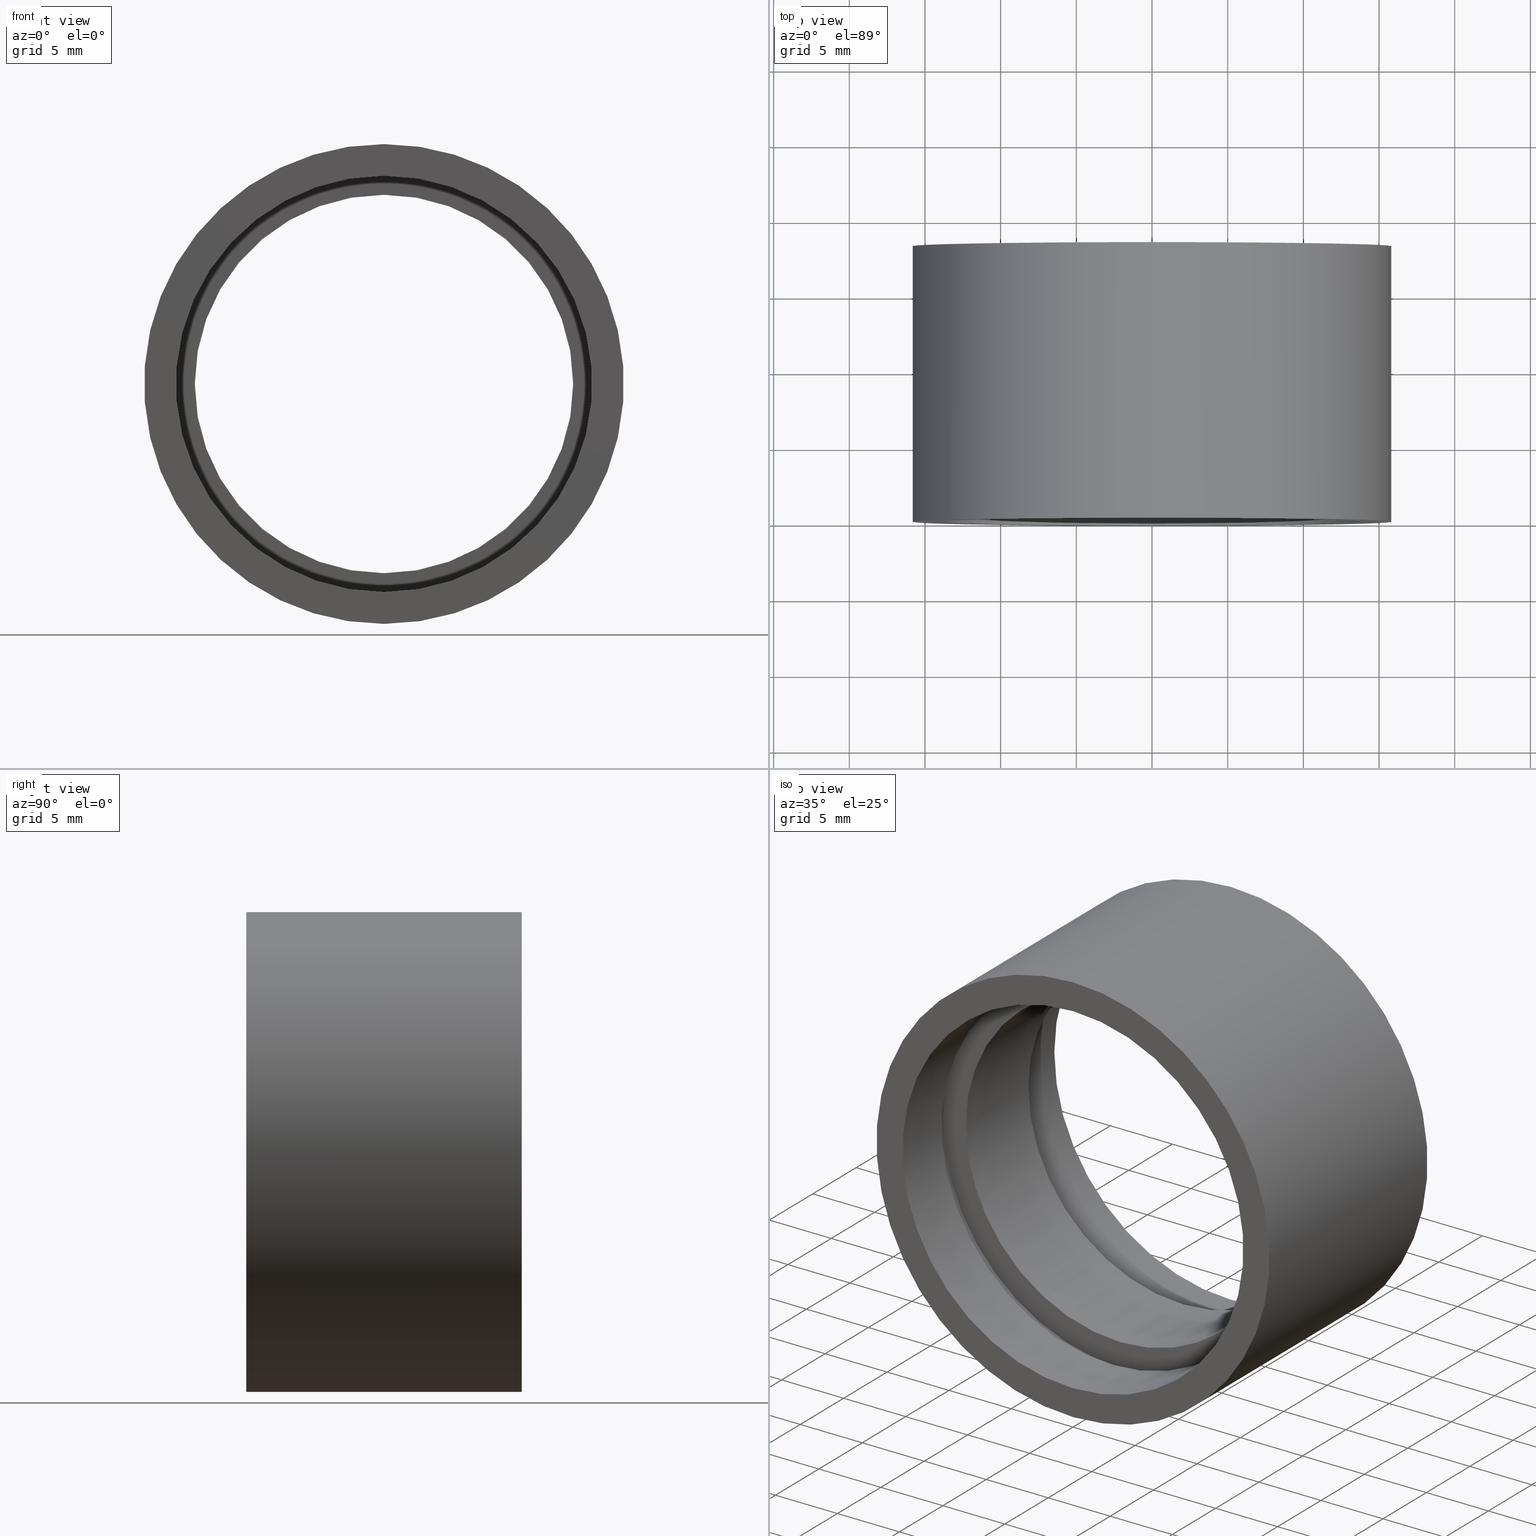
[diagram: canonical four-view strip — front | top / right | iso, engineering-drawing reading convention]
A machine part, canonical four-view strip (front | top / right | iso — engineering-drawing reading convention). The complete STEP part file that produces these views, byte-faithful:
ISO-10303-21;
HEADER;
FILE_DESCRIPTION (( 'STEP AP214' ),
    '1' );
FILE_NAME ('503054.STEP',
    '2019-09-06T07:47:11',
    ( '' ),
    ( '' ),
    'SwSTEP 2.0',
    'SolidWorks 2016',
    '' );
FILE_SCHEMA (( 'AUTOMOTIVE_DESIGN' ));
ENDSEC;

DATA;
#1 = EDGE_CURVE ( 'NONE', #546, #177, #510, .T. ) ;
#2 =( LENGTH_UNIT ( ) NAMED_UNIT ( * ) SI_UNIT ( .MILLI., .METRE. ) );
#3 = CIRCLE ( 'NONE', #153, 13.75000000000002100 ) ;
#4 = DIRECTION ( 'NONE',  ( -0.0000000000000000000, 1.000000000000000000, -0.0000000000000000000 ) ) ;
#5 = EDGE_LOOP ( 'NONE', ( #332, #242 ) ) ;
#6 = FILL_AREA_STYLE_COLOUR ( '', #356 ) ;
#7 = ADVANCED_FACE ( 'NONE', ( #432 ), #371, .F. ) ;
#8 = DIRECTION ( 'NONE',  ( -0.0000000000000000000, 1.000000000000000000, -0.0000000000000000000 ) ) ;
#9 = SURFACE_SIDE_STYLE ('',( #537 ) ) ;
#10 = AXIS2_PLACEMENT_3D ( 'NONE', #508, #162, #29 ) ;
#11 = DIRECTION ( 'NONE',  ( -0.0000000000000000000, 1.000000000000000000, -0.0000000000000000000 ) ) ;
#12 = CIRCLE ( 'NONE', #46, 14.35000000000001700 ) ;
#13 = CARTESIAN_POINT ( 'NONE',  ( 0.0000000000000000000, -2.775557561562891400E-014, 13.75000000000002100 ) ) ;
#14 = VERTEX_POINT ( 'NONE', #276 ) ;
#15 = EDGE_CURVE ( 'NONE', #108, #325, #399, .T. ) ;
#16 = VECTOR ( 'NONE', #78, 1000.000000000000000 ) ;
#17 = FACE_OUTER_BOUND ( 'NONE', #475, .T. ) ;
#18 = VERTEX_POINT ( 'NONE', #609 ) ;
#19 = AXIS2_PLACEMENT_3D ( 'NONE', #386, #202, #155 ) ;
#20 = CYLINDRICAL_SURFACE ( 'NONE', #507, 12.50000000000002000 ) ;
#21 = AXIS2_PLACEMENT_3D ( 'NONE', #51, #148, #552 ) ;
#22 = DIRECTION ( 'NONE',  ( 0.0000000000000000000, 0.0000000000000000000, 1.000000000000000000 ) ) ;
#23 = UNCERTAINTY_MEASURE_WITH_UNIT (LENGTH_MEASURE( 1.000000000000000100E-005 ), #381, 'distance_accuracy_value', 'NONE');
#24 = FILL_AREA_STYLE ('',( #501 ) ) ;
#25 = DIRECTION ( 'NONE',  ( -0.0000000000000000000, 1.000000000000000000, -0.0000000000000000000 ) ) ;
#26 = ORIENTED_EDGE ( 'NONE', *, *, #453, .T. ) ;
#27 = VERTEX_POINT ( 'NONE', #465 ) ;
#28 = PRESENTATION_STYLE_ASSIGNMENT (( #539 ) ) ;
#29 = DIRECTION ( 'NONE',  ( 0.0000000000000000000, 0.0000000000000000000, 1.000000000000000000 ) ) ;
#30 = AXIS2_PLACEMENT_3D ( 'NONE', #407, #594, #112 ) ;
#31 = DIRECTION ( 'NONE',  ( -0.0000000000000000000, 1.000000000000000000, -0.0000000000000000000 ) ) ;
#32 = EDGE_CURVE ( 'NONE', #325, #108, #267, .T. ) ;
#33 = SURFACE_STYLE_FILL_AREA ( #542 ) ;
#34 = VERTEX_POINT ( 'NONE', #272 ) ;
#35 = DIRECTION ( 'NONE',  ( 0.0000000000000000000, 0.0000000000000000000, 1.000000000000000000 ) ) ;
#36 = ORIENTED_EDGE ( 'NONE', *, *, #218, .F. ) ;
#37 = DIRECTION ( 'NONE',  ( -0.0000000000000000000, 1.000000000000000000, -0.0000000000000000000 ) ) ;
#38 = DIRECTION ( 'NONE',  ( -0.0000000000000000000, 1.000000000000000000, -0.0000000000000000000 ) ) ;
#39 = DIRECTION ( 'NONE',  ( -0.0000000000000000000, 1.000000000000000000, -0.0000000000000000000 ) ) ;
#40 = CARTESIAN_POINT ( 'NONE',  ( 1.757368156776454300E-015, 13.69999999999999000, -14.35000000000001900 ) ) ;
#41 = PRESENTATION_STYLE_ASSIGNMENT (( #306 ) ) ;
#42 = AXIS2_PLACEMENT_3D ( 'NONE', #443, #200, #547 ) ;
#43 = FACE_OUTER_BOUND ( 'NONE', #216, .T. ) ;
#44 = EDGE_LOOP ( 'NONE', ( #364, #150, #211, #459 ) ) ;
#45 =( GEOMETRIC_REPRESENTATION_CONTEXT ( 3 ) GLOBAL_UNCERTAINTY_ASSIGNED_CONTEXT ( ( #601 ) ) GLOBAL_UNIT_ASSIGNED_CONTEXT ( ( #152, #498, #61 ) ) REPRESENTATION_CONTEXT ( 'NONE', 'WORKASPACE' ) );
#46 = AXIS2_PLACEMENT_3D ( 'NONE', #387, #580, #530 ) ;
#47 = SURFACE_SIDE_STYLE ('',( #302 ) ) ;
#48 = FILL_AREA_STYLE_COLOUR ( '', #297 ) ;
#49 = ORIENTED_EDGE ( 'NONE', *, *, #156, .T. ) ;
#50 = CYLINDRICAL_SURFACE ( 'NONE', #571, 15.85000000000002100 ) ;
#51 = CARTESIAN_POINT ( 'NONE',  ( 14.25000000000001800, 13.69999999999998300, 0.0000000000000000000 ) ) ;
#52 = MECHANICAL_DESIGN_GEOMETRIC_PRESENTATION_REPRESENTATION (  '', ( #495 ), #526 ) ;
#53 = CARTESIAN_POINT ( 'NONE',  ( 1.683889348827613200E-015, 4.499999999999976000, -13.75000000000002100 ) ) ;
#54 = SURFACE_SIDE_STYLE ('',( #88 ) ) ;
#55 = VECTOR ( 'NONE', #201, 1000.000000000000000 ) ;
#56 = ORIENTED_EDGE ( 'NONE', *, *, #321, .T. ) ;
#57 = EDGE_CURVE ( 'NONE', #313, #406, #12, .T. ) ;
#58 = ORIENTED_EDGE ( 'NONE', *, *, #603, .F. ) ;
#59 =( NAMED_UNIT ( * ) PLANE_ANGLE_UNIT ( ) SI_UNIT ( $, .RADIAN. ) );
#60 = CARTESIAN_POINT ( 'NONE',  ( 1.941065176648557100E-015, 18.19999999999999600, -15.85000000000002100 ) ) ;
#61 =( NAMED_UNIT ( * ) SI_UNIT ( $, .STERADIAN. ) SOLID_ANGLE_UNIT ( ) );
#62 = FACE_OUTER_BOUND ( 'NONE', #71, .T. ) ;
#63 =( NAMED_UNIT ( * ) SI_UNIT ( $, .STERADIAN. ) SOLID_ANGLE_UNIT ( ) );
#64 = ORIENTED_EDGE ( 'NONE', *, *, #595, .F. ) ;
#65 = VERTEX_POINT ( 'NONE', #476 ) ;
#66 = EDGE_CURVE ( 'NONE', #621, #177, #544, .T. ) ;
#67 = DIRECTION ( 'NONE',  ( -0.0000000000000000000, 1.000000000000000000, 0.0000000000000000000 ) ) ;
#68 = UNCERTAINTY_MEASURE_WITH_UNIT (LENGTH_MEASURE( 1.000000000000000100E-005 ), #236, 'distance_accuracy_value', 'NONE');
#69 =( LENGTH_UNIT ( ) NAMED_UNIT ( * ) SI_UNIT ( .MILLI., .METRE. ) );
#70 = CIRCLE ( 'NONE', #563, 14.25000000000001800 ) ;
#71 = EDGE_LOOP ( 'NONE', ( #333, #36, #56, #391 ) ) ;
#72 = CIRCLE ( 'NONE', #482, 14.35000000000001900 ) ;
#73 = AXIS2_PLACEMENT_3D ( 'NONE', #130, #291, #282 ) ;
#74 = ORIENTED_EDGE ( 'NONE', *, *, #300, .F. ) ;
#75 = VERTEX_POINT ( 'NONE', #223 ) ;
#76 = CARTESIAN_POINT ( 'NONE',  ( 13.75000000000002100, 4.499999999999984000, 0.0000000000000000000 ) ) ;
#77 = CARTESIAN_POINT ( 'NONE',  ( 0.0000000000000000000, 161.3761669434274500, 0.0000000000000000000 ) ) ;
#78 = DIRECTION ( 'NONE',  ( -0.0000000000000000000, 1.000000000000000000, -0.0000000000000000000 ) ) ;
#79 = AXIS2_PLACEMENT_3D ( 'NONE', #462, #25, #456 ) ;
#80 = FACE_OUTER_BOUND ( 'NONE', #576, .T. ) ;
#81 = SURFACE_STYLE_FILL_AREA ( #606 ) ;
#82 = CARTESIAN_POINT ( 'NONE',  ( 0.0000000000000000000, 161.3761669434274500, 15.85000000000002100 ) ) ;
#83 = ORIENTED_EDGE ( 'NONE', *, *, #390, .T. ) ;
#84 = PRESENTATION_LAYER_ASSIGNMENT (  '', '', ( #564 ) ) ;
#85 = FILL_AREA_STYLE ('',( #464 ) ) ;
#86 = DIRECTION ( 'NONE',  ( 0.0000000000000000000, 0.0000000000000000000, 1.000000000000000000 ) ) ;
#87 = CARTESIAN_POINT ( 'NONE',  ( 0.0000000000000000000, 4.499999999999976000, 13.75000000000002100 ) ) ;
#88 = SURFACE_STYLE_FILL_AREA ( #195 ) ;
#89 = ADVANCED_FACE ( 'NONE', ( #558, #452 ), #288, .F. ) ;
#90 = VERTEX_POINT ( 'NONE', #234 ) ;
#91 = FILL_AREA_STYLE ('',( #192 ) ) ;
#92 = CYLINDRICAL_SURFACE ( 'NONE', #550, 15.85000000000002100 ) ;
#93 = DIRECTION ( 'NONE',  ( 0.0000000000000000000, 0.0000000000000000000, 1.000000000000000000 ) ) ;
#94 = EDGE_CURVE ( 'NONE', #27, #423, #503, .T. ) ;
#95 = CARTESIAN_POINT ( 'NONE',  ( 0.0000000000000000000, 5.499999999999976900, 0.0000000000000000000 ) ) ;
#96 = DIRECTION ( 'NONE',  ( -0.0000000000000000000, 1.000000000000000000, -0.0000000000000000000 ) ) ;
#97 = SURFACE_SIDE_STYLE ('',( #33 ) ) ;
#98 = ADVANCED_FACE ( 'NONE', ( #17 ), #213, .F. ) ;
#99 = LINE ( 'NONE', #354, #557 ) ;
#100 = EDGE_LOOP ( 'NONE', ( #357, #160, #260, #496 ) ) ;
#101 = CIRCLE ( 'NONE', #209, 14.35000000000001900 ) ;
#102 = VECTOR ( 'NONE', #178, 1000.000000000000000 ) ;
#103 =( LENGTH_UNIT ( ) NAMED_UNIT ( * ) SI_UNIT ( .MILLI., .METRE. ) );
#104 = AXIS2_PLACEMENT_3D ( 'NONE', #256, #67, #451 ) ;
#105 =( NAMED_UNIT ( * ) SI_UNIT ( $, .STERADIAN. ) SOLID_ANGLE_UNIT ( ) );
#106 = DIRECTION ( 'NONE',  ( 0.0000000000000000000, 0.0000000000000000000, 1.000000000000000000 ) ) ;
#107 = VERTEX_POINT ( 'NONE', #240 ) ;
#108 = VERTEX_POINT ( 'NONE', #619 ) ;
#109 = CIRCLE ( 'NONE', #278, 14.35000000000001900 ) ;
#110 = SURFACE_SIDE_STYLE ('',( #422 ) ) ;
#111 = CIRCLE ( 'NONE', #471, 12.50000000000002000 ) ;
#112 = DIRECTION ( 'NONE',  ( 0.0000000000000000000, 0.0000000000000000000, 1.000000000000000000 ) ) ;
#113 = ORIENTED_EDGE ( 'NONE', *, *, #149, .T. ) ;
#114 = STYLED_ITEM ( 'NONE', ( #353 ), #434 ) ;
#115 = CARTESIAN_POINT ( 'NONE',  ( 1.757368156776454000E-015, 12.69999999999998900, -14.35000000000001700 ) ) ;
#116 = CARTESIAN_POINT ( 'NONE',  ( 0.0000000000000000000, -2.775557561562891400E-014, 0.0000000000000000000 ) ) ;
#117 =( GEOMETRIC_REPRESENTATION_CONTEXT ( 3 ) GLOBAL_UNCERTAINTY_ASSIGNED_CONTEXT ( ( #561 ) ) GLOBAL_UNIT_ASSIGNED_CONTEXT ( ( #167, #515, #470 ) ) REPRESENTATION_CONTEXT ( 'NONE', 'WORKASPACE' ) );
#118 = EDGE_LOOP ( 'NONE', ( #143, #119 ) ) ;
#119 = ORIENTED_EDGE ( 'NONE', *, *, #511, .F. ) ;
#120 = PRESENTATION_LAYER_ASSIGNMENT (  '', '', ( #458 ) ) ;
#121 = LINE ( 'NONE', #82, #382 ) ;
#122 = AXIS2_PLACEMENT_3D ( 'NONE', #427, #180, #185 ) ;
#123 = CARTESIAN_POINT ( 'NONE',  ( 0.0000000000000000000, 18.19999999999999600, 0.0000000000000000000 ) ) ;
#124 = COLOUR_RGB ( '',1.000000000000000000, 1.000000000000000000, 1.000000000000000000 ) ;
#125 = DIRECTION ( 'NONE',  ( -0.0000000000000000000, 1.000000000000000000, -0.0000000000000000000 ) ) ;
#126 = CIRCLE ( 'NONE', #244, 14.35000000000001900 ) ;
#127 = CARTESIAN_POINT ( 'NONE',  ( 1.757368156776454300E-015, 4.499999999999976000, -14.35000000000001900 ) ) ;
#128 = SURFACE_STYLE_USAGE ( .BOTH. , #611 ) ;
#129 = DIRECTION ( 'NONE',  ( 0.0000000000000000000, 0.0000000000000000000, 1.000000000000000000 ) ) ;
#130 = CARTESIAN_POINT ( 'NONE',  ( 0.0000000000000000000, 4.499999999999976000, 0.0000000000000000000 ) ) ;
#131 = AXIS2_PLACEMENT_3D ( 'NONE', #567, #279, #280 ) ;
#132 = ORIENTED_EDGE ( 'NONE', *, *, #191, .T. ) ;
#133 = DIRECTION ( 'NONE',  ( 0.0000000000000000000, -1.000000000000000000, 0.0000000000000000000 ) ) ;
#134 = ORIENTED_EDGE ( 'NONE', *, *, #32, .T. ) ;
#135 = STYLED_ITEM ( 'NONE', ( #221 ), #144 ) ;
#136 = PRODUCT_DEFINITION_CONTEXT ( 'detailed design', #548, 'design' ) ;
#137 = CARTESIAN_POINT ( 'NONE',  ( 1.530808498934193900E-015, 12.69999999999998900, -12.50000000000002000 ) ) ;
#138 =( NAMED_UNIT ( * ) PLANE_ANGLE_UNIT ( ) SI_UNIT ( $, .RADIAN. ) );
#139 = APPLICATION_CONTEXT ( 'automotive_design' ) ;
#140 = DIRECTION ( 'NONE',  ( 0.0000000000000000000, 0.0000000000000000000, 1.000000000000000000 ) ) ;
#141 = LINE ( 'NONE', #581, #55 ) ;
#142 = DIRECTION ( 'NONE',  ( -0.0000000000000000000, 1.000000000000000000, -0.0000000000000000000 ) ) ;
#143 = ORIENTED_EDGE ( 'NONE', *, *, #94, .F. ) ;
#144 = ADVANCED_FACE ( 'NONE', ( #251 ), #466, .F. ) ;
#145 = CARTESIAN_POINT ( 'NONE',  ( 0.0000000000000000000, -2.775557561562891400E-014, 0.0000000000000000000 ) ) ;
#146 = DIRECTION ( 'NONE',  ( -0.0000000000000000000, 1.000000000000000000, -0.0000000000000000000 ) ) ;
#147 = PRESENTATION_LAYER_ASSIGNMENT (  '', '', ( #114 ) ) ;
#148 = DIRECTION ( 'NONE',  ( -0.0000000000000000000, 1.000000000000000000, 0.0000000000000000000 ) ) ;
#149 = EDGE_CURVE ( 'NONE', #417, #325, #409, .T. ) ;
#150 = ORIENTED_EDGE ( 'NONE', *, *, #232, .T. ) ;
#151 = ORIENTED_EDGE ( 'NONE', *, *, #57, .T. ) ;
#152 =( LENGTH_UNIT ( ) NAMED_UNIT ( * ) SI_UNIT ( .MILLI., .METRE. ) );
#153 = AXIS2_PLACEMENT_3D ( 'NONE', #116, #31, #362 ) ;
#154 = SURFACE_STYLE_USAGE ( .BOTH. , #110 ) ;
#155 = DIRECTION ( 'NONE',  ( 1.000000000000000000, 0.0000000000000000000, 0.0000000000000000000 ) ) ;
#156 = EDGE_CURVE ( 'NONE', #454, #107, #346, .T. ) ;
#157 =( NAMED_UNIT ( * ) PLANE_ANGLE_UNIT ( ) SI_UNIT ( $, .RADIAN. ) );
#158 = LINE ( 'NONE', #230, #622 ) ;
#159 =( LENGTH_UNIT ( ) NAMED_UNIT ( * ) SI_UNIT ( .MILLI., .METRE. ) );
#160 = ORIENTED_EDGE ( 'NONE', *, *, #595, .T. ) ;
#161 = LINE ( 'NONE', #238, #380 ) ;
#162 = DIRECTION ( 'NONE',  ( -0.0000000000000000000, 1.000000000000000000, -0.0000000000000000000 ) ) ;
#163 = FACE_OUTER_BOUND ( 'NONE', #318, .T. ) ;
#164 = PRESENTATION_LAYER_ASSIGNMENT (  '', '', ( #135 ) ) ;
#165 = CARTESIAN_POINT ( 'NONE',  ( 0.0000000000000000000, 161.3761669434274500, 0.0000000000000000000 ) ) ;
#166 = PRODUCT ( '503054', '503054', '', ( #247 ) ) ;
#167 =( LENGTH_UNIT ( ) NAMED_UNIT ( * ) SI_UNIT ( .MILLI., .METRE. ) );
#168 = ORIENTED_EDGE ( 'NONE', *, *, #355, .T. ) ;
#169 = SURFACE_SIDE_STYLE ('',( #377 ) ) ;
#170 = VERTEX_POINT ( 'NONE', #60 ) ;
#171 = SHAPE_DEFINITION_REPRESENTATION ( #310, #493 ) ;
#172 = DIRECTION ( 'NONE',  ( -0.0000000000000000000, 1.000000000000000000, -0.0000000000000000000 ) ) ;
#173 = UNCERTAINTY_MEASURE_WITH_UNIT (LENGTH_MEASURE( 1.000000000000000100E-005 ), #222, 'distance_accuracy_value', 'NONE');
#174 = CARTESIAN_POINT ( 'NONE',  ( 1.530808498934193900E-015, 161.3761669434274500, -12.50000000000002000 ) ) ;
#175 =( GEOMETRIC_REPRESENTATION_CONTEXT ( 3 ) GLOBAL_UNCERTAINTY_ASSIGNED_CONTEXT ( ( #173 ) ) GLOBAL_UNIT_ASSIGNED_CONTEXT ( ( #222, #568, #182 ) ) REPRESENTATION_CONTEXT ( 'NONE', 'WORKASPACE' ) );
#176 = DIRECTION ( 'NONE',  ( 0.0000000000000000000, 0.0000000000000000000, 1.000000000000000000 ) ) ;
#177 = VERTEX_POINT ( 'NONE', #53 ) ;
#178 = DIRECTION ( 'NONE',  ( -0.0000000000000000000, 1.000000000000000000, -0.0000000000000000000 ) ) ;
#179 = EDGE_CURVE ( 'NONE', #513, #65, #70, .T. ) ;
#180 = DIRECTION ( 'NONE',  ( -0.0000000000000000000, 1.000000000000000000, -0.0000000000000000000 ) ) ;
#181 = SURFACE_STYLE_FILL_AREA ( #85 ) ;
#182 =( NAMED_UNIT ( * ) SI_UNIT ( $, .STERADIAN. ) SOLID_ANGLE_UNIT ( ) );
#183 = CARTESIAN_POINT ( 'NONE',  ( 15.85000000000002100, 18.19999999999998900, 0.0000000000000000000 ) ) ;
#184 = CARTESIAN_POINT ( 'NONE',  ( 0.0000000000000000000, 161.3761669434274500, 0.0000000000000000000 ) ) ;
#185 = DIRECTION ( 'NONE',  ( 0.0000000000000000000, 0.0000000000000000000, 1.000000000000000000 ) ) ;
#186 = AXIS2_PLACEMENT_3D ( 'NONE', #76, #323, #263 ) ;
#187 = ADVANCED_FACE ( 'NONE', ( #43 ), #543, .F. ) ;
#188 = VERTEX_POINT ( 'NONE', #589 ) ;
#189 = ORIENTED_EDGE ( 'NONE', *, *, #32, .F. ) ;
#190 = CIRCLE ( 'NONE', #10, 15.85000000000002100 ) ;
#191 = EDGE_CURVE ( 'NONE', #14, #108, #141, .T. ) ;
#192 = FILL_AREA_STYLE_COLOUR ( '', #124 ) ;
#193 = ADVANCED_FACE ( 'NONE', ( #62 ), #258, .F. ) ;
#194 = DIRECTION ( 'NONE',  ( 0.0000000000000000000, 0.0000000000000000000, 1.000000000000000000 ) ) ;
#195 = FILL_AREA_STYLE ('',( #445 ) ) ;
#196 = PRESENTATION_STYLE_ASSIGNMENT (( #246 ) ) ;
#197 = APPLICATION_PROTOCOL_DEFINITION ( 'draft international standard', 'automotive_design', 1998, #548 ) ;
#198 = ORIENTED_EDGE ( 'NONE', *, *, #390, .F. ) ;
#199 = AXIS2_PLACEMENT_3D ( 'NONE', #184, #524, #343 ) ;
#200 = DIRECTION ( 'NONE',  ( -0.0000000000000000000, 1.000000000000000000, -0.0000000000000000000 ) ) ;
#201 = DIRECTION ( 'NONE',  ( -0.0000000000000000000, 1.000000000000000000, -0.0000000000000000000 ) ) ;
#202 = DIRECTION ( 'NONE',  ( 0.0000000000000000000, 0.0000000000000000000, 1.000000000000000000 ) ) ;
#203 = ORIENTED_EDGE ( 'NONE', *, *, #15, .F. ) ;
#204 = VERTEX_POINT ( 'NONE', #13 ) ;
#205 = PLANE ( 'NONE',  #450 ) ;
#206 = DIRECTION ( 'NONE',  ( -0.0000000000000000000, 1.000000000000000000, -0.0000000000000000000 ) ) ;
#207 = CARTESIAN_POINT ( 'NONE',  ( 0.0000000000000000000, 4.499999999999976000, 0.0000000000000000000 ) ) ;
#208 = VECTOR ( 'NONE', #538, 1000.000000000000000 ) ;
#209 = AXIS2_PLACEMENT_3D ( 'NONE', #520, #327, #219 ) ;
#210 = ORIENTED_EDGE ( 'NONE', *, *, #218, .T. ) ;
#211 = ORIENTED_EDGE ( 'NONE', *, *, #444, .T. ) ;
#212 = EDGE_CURVE ( 'NONE', #406, #313, #336, .T. ) ;
#213 = CYLINDRICAL_SURFACE ( 'NONE', #500, 14.35000000000001900 ) ;
#214 = ORIENTED_EDGE ( 'NONE', *, *, #212, .T. ) ;
#215 = STYLED_ITEM ( 'NONE', ( #509 ), #342 ) ;
#216 = EDGE_LOOP ( 'NONE', ( #593, #512, #410, #412 ) ) ;
#217 = DIRECTION ( 'NONE',  ( -0.0000000000000000000, 1.000000000000000000, -0.0000000000000000000 ) ) ;
#218 = EDGE_CURVE ( 'NONE', #204, #546, #331, .T. ) ;
#219 = DIRECTION ( 'NONE',  ( 0.0000000000000000000, 0.0000000000000000000, 1.000000000000000000 ) ) ;
#220 = CIRCLE ( 'NONE', #30, 12.50000000000002000 ) ;
#221 = PRESENTATION_STYLE_ASSIGNMENT (( #534 ) ) ;
#222 =( LENGTH_UNIT ( ) NAMED_UNIT ( * ) SI_UNIT ( .MILLI., .METRE. ) );
#223 = CARTESIAN_POINT ( 'NONE',  ( 0.0000000000000000000, 12.69999999999998900, 12.50000000000002000 ) ) ;
#224 = DIRECTION ( 'NONE',  ( -0.0000000000000000000, 1.000000000000000000, -0.0000000000000000000 ) ) ;
#225 = AXIS2_PLACEMENT_3D ( 'NONE', #393, #96, #435 ) ;
#226 = CARTESIAN_POINT ( 'NONE',  ( 1.745121688784980600E-015, 13.69999999999999000, -14.25000000000001800 ) ) ;
#227 = DIRECTION ( 'NONE',  ( 0.0000000000000000000, -0.0000000000000000000, -1.000000000000000000 ) ) ;
#228 = ORIENTED_EDGE ( 'NONE', *, *, #300, .T. ) ;
#229 = ORIENTED_EDGE ( 'NONE', *, *, #212, .F. ) ;
#230 = CARTESIAN_POINT ( 'NONE',  ( 1.745121688784980600E-015, 161.3761669434274500, -14.25000000000001800 ) ) ;
#231 = ORIENTED_EDGE ( 'NONE', *, *, #404, .T. ) ;
#232 = EDGE_CURVE ( 'NONE', #313, #477, #241, .T. ) ;
#233 = FACE_OUTER_BOUND ( 'NONE', #565, .T. ) ;
#234 = CARTESIAN_POINT ( 'NONE',  ( 0.0000000000000000000, 18.19999999999999600, 14.25000000000001800 ) ) ;
#235 = CIRCLE ( 'NONE', #79, 14.25000000000001800 ) ;
#236 =( LENGTH_UNIT ( ) NAMED_UNIT ( * ) SI_UNIT ( .MILLI., .METRE. ) );
#237 = DIRECTION ( 'NONE',  ( -0.0000000000000000000, 1.000000000000000000, -0.0000000000000000000 ) ) ;
#238 = CARTESIAN_POINT ( 'NONE',  ( 0.0000000000000000000, 161.3761669434274500, 14.25000000000001800 ) ) ;
#239 = ADVANCED_FACE ( 'NONE', ( #311, #416 ), #584, .F. ) ;
#240 = CARTESIAN_POINT ( 'NONE',  ( 0.0000000000000000000, 5.499999999999976900, 12.50000000000002000 ) ) ;
#241 = LINE ( 'NONE', #341, #208 ) ;
#242 = ORIENTED_EDGE ( 'NONE', *, *, #419, .T. ) ;
#243 = MANIFOLD_SOLID_BREP ( '��ת1', #613 ) ;
#244 = AXIS2_PLACEMENT_3D ( 'NONE', #623, #146, #93 ) ;
#245 = CYLINDRICAL_SURFACE ( 'NONE', #485, 13.75000000000002100 ) ;
#246 = SURFACE_STYLE_USAGE ( .BOTH. , #54 ) ;
#247 = PRODUCT_CONTEXT ( 'NONE', #139, 'mechanical' ) ;
#248 = CARTESIAN_POINT ( 'NONE',  ( 1.757368156776454300E-015, 161.3761669434274500, -14.35000000000001900 ) ) ;
#249 = AXIS2_PLACEMENT_3D ( 'NONE', #95, #237, #86 ) ;
#250 = FILL_AREA_STYLE_COLOUR ( '', #521 ) ;
#251 = FACE_OUTER_BOUND ( 'NONE', #283, .T. ) ;
#252 = EDGE_LOOP ( 'NONE', ( #64, #351, #231, #281 ) ) ;
#253 = ORIENTED_EDGE ( 'NONE', *, *, #397, .T. ) ;
#254 = CIRCLE ( 'NONE', #266, 12.50000000000002000 ) ;
#255 = PRESENTATION_LAYER_ASSIGNMENT (  '', '', ( #415 ) ) ;
#256 = CARTESIAN_POINT ( 'NONE',  ( 13.75000000000002100, -1.554524340841388500E-014, 0.0000000000000000000 ) ) ;
#257 = CARTESIAN_POINT ( 'NONE',  ( 12.50000000000002000, 12.69999999999998200, 0.0000000000000000000 ) ) ;
#258 = CYLINDRICAL_SURFACE ( 'NONE', #289, 13.75000000000002100 ) ;
#259 = PRESENTATION_STYLE_ASSIGNMENT (( #128 ) ) ;
#260 = ORIENTED_EDGE ( 'NONE', *, *, #349, .F. ) ;
#261 = CARTESIAN_POINT ( 'NONE',  ( 0.0000000000000000000, 12.69999999999998900, 0.0000000000000000000 ) ) ;
#262 = AXIS2_PLACEMENT_3D ( 'NONE', #183, #133, #227 ) ;
#263 = DIRECTION ( 'NONE',  ( 0.0000000000000000000, -0.0000000000000000000, -1.000000000000000000 ) ) ;
#264 = DIRECTION ( 'NONE',  ( 0.0000000000000000000, 0.0000000000000000000, 1.000000000000000000 ) ) ;
#265 = COLOUR_RGB ( '',1.000000000000000000, 1.000000000000000000, 1.000000000000000000 ) ;
#266 = AXIS2_PLACEMENT_3D ( 'NONE', #285, #617, #577 ) ;
#267 = CIRCLE ( 'NONE', #249, 14.35000000000001900 ) ;
#268 = EDGE_LOOP ( 'NONE', ( #566, #350 ) ) ;
#269 = CYLINDRICAL_SURFACE ( 'NONE', #225, 14.35000000000001900 ) ;
#270 = PRODUCT_DEFINITION ( 'δ֪', '', #308, #136 ) ;
#271 = EDGE_CURVE ( 'NONE', #177, #621, #551, .T. ) ;
#272 = CARTESIAN_POINT ( 'NONE',  ( 0.0000000000000000000, 13.69999999999999000, 14.35000000000001900 ) ) ;
#273 = DIRECTION ( 'NONE',  ( -0.0000000000000000000, 1.000000000000000000, -0.0000000000000000000 ) ) ;
#274 = VECTOR ( 'NONE', #614, 1000.000000000000000 ) ;
#275 = EDGE_LOOP ( 'NONE', ( #533, #74, #83, #425 ) ) ;
#276 = CARTESIAN_POINT ( 'NONE',  ( 0.0000000000000000000, 4.499999999999976000, 14.35000000000001900 ) ) ;
#277 = SURFACE_SIDE_STYLE ('',( #181 ) ) ;
#278 = AXIS2_PLACEMENT_3D ( 'NONE', #322, #217, #560 ) ;
#279 = DIRECTION ( 'NONE',  ( -0.0000000000000000000, 1.000000000000000000, -0.0000000000000000000 ) ) ;
#280 = DIRECTION ( 'NONE',  ( 0.0000000000000000000, 0.0000000000000000000, 1.000000000000000000 ) ) ;
#281 = ORIENTED_EDGE ( 'NONE', *, *, #419, .F. ) ;
#282 = DIRECTION ( 'NONE',  ( 0.0000000000000000000, 0.0000000000000000000, 1.000000000000000000 ) ) ;
#283 = EDGE_LOOP ( 'NONE', ( #58, #303, #373, #504 ) ) ;
#284 = CYLINDRICAL_SURFACE ( 'NONE', #199, 14.35000000000001900 ) ;
#285 = CARTESIAN_POINT ( 'NONE',  ( 0.0000000000000000000, 12.69999999999998900, 0.0000000000000000000 ) ) ;
#286 = CARTESIAN_POINT ( 'NONE',  ( 0.0000000000000000000, 161.3761669434274500, 0.0000000000000000000 ) ) ;
#287 = ADVANCED_FACE ( 'NONE', ( #370, #292 ), #405, .F. ) ;
#288 = PLANE ( 'NONE',  #262 ) ;
#289 = AXIS2_PLACEMENT_3D ( 'NONE', #344, #398, #395 ) ;
#290 =( NAMED_UNIT ( * ) SI_UNIT ( $, .STERADIAN. ) SOLID_ANGLE_UNIT ( ) );
#291 = DIRECTION ( 'NONE',  ( -0.0000000000000000000, 1.000000000000000000, -0.0000000000000000000 ) ) ;
#292 = FACE_BOUND ( 'NONE', #294, .T. ) ;
#293 = ADVANCED_FACE ( 'NONE', ( #612, #487 ), #205, .F. ) ;
#294 = EDGE_LOOP ( 'NONE', ( #210, #392 ) ) ;
#295 = DIRECTION ( 'NONE',  ( -0.0000000000000000000, 1.000000000000000000, -0.0000000000000000000 ) ) ;
#296 = EDGE_LOOP ( 'NONE', ( #214, #151 ) ) ;
#297 = COLOUR_RGB ( '',1.000000000000000000, 1.000000000000000000, 1.000000000000000000 ) ;
#298 = UNCERTAINTY_MEASURE_WITH_UNIT (LENGTH_MEASURE( 1.000000000000000100E-005 ), #103, 'distance_accuracy_value', 'NONE');
#299 = DIRECTION ( 'NONE',  ( -0.0000000000000000000, 1.000000000000000000, -0.0000000000000000000 ) ) ;
#300 = EDGE_CURVE ( 'NONE', #107, #454, #220, .T. ) ;
#301 =( NAMED_UNIT ( * ) SI_UNIT ( $, .STERADIAN. ) SOLID_ANGLE_UNIT ( ) );
#302 = SURFACE_STYLE_FILL_AREA ( #91 ) ;
#303 = ORIENTED_EDGE ( 'NONE', *, *, #355, .F. ) ;
#304 = AXIS2_PLACEMENT_3D ( 'NONE', #484, #383, #481 ) ;
#305 = FACE_OUTER_BOUND ( 'NONE', #252, .T. ) ;
#306 = SURFACE_STYLE_USAGE ( .BOTH. , #97 ) ;
#307 = CARTESIAN_POINT ( 'NONE',  ( 0.0000000000000000000, 161.3761669434274500, 14.35000000000001900 ) ) ;
#308 = PRODUCT_DEFINITION_FORMATION_WITH_SPECIFIED_SOURCE ( '�κ�', '', #166, .NOT_KNOWN. ) ;
#309 = EDGE_CURVE ( 'NONE', #523, #75, #111, .T. ) ;
#310 = PRODUCT_DEFINITION_SHAPE ( 'NONE', 'NONE',  #270 ) ;
#311 = FACE_OUTER_BOUND ( 'NONE', #431, .T. ) ;
#312 = ORIENTED_EDGE ( 'NONE', *, *, #15, .T. ) ;
#313 = VERTEX_POINT ( 'NONE', #115 ) ;
#314 = DIRECTION ( 'NONE',  ( 0.0000000000000000000, -0.0000000000000000000, -1.000000000000000000 ) ) ;
#315 = DIRECTION ( 'NONE',  ( 0.0000000000000000000, 0.0000000000000000000, 1.000000000000000000 ) ) ;
#316 = AXIS2_PLACEMENT_3D ( 'NONE', #479, #4, #582 ) ;
#317 = CARTESIAN_POINT ( 'NONE',  ( 0.0000000000000000000, 161.3761669434274500, 0.0000000000000000000 ) ) ;
#318 = EDGE_LOOP ( 'NONE', ( #559, #229, #535, #26 ) ) ;
#319 =( NAMED_UNIT ( * ) PLANE_ANGLE_UNIT ( ) SI_UNIT ( $, .RADIAN. ) );
#320 = CYLINDRICAL_SURFACE ( 'NONE', #131, 14.35000000000001900 ) ;
#321 = EDGE_CURVE ( 'NONE', #204, #621, #99, .T. ) ;
#322 = CARTESIAN_POINT ( 'NONE',  ( 0.0000000000000000000, 4.499999999999976000, 0.0000000000000000000 ) ) ;
#323 = DIRECTION ( 'NONE',  ( 0.0000000000000000000, -1.000000000000000000, 0.0000000000000000000 ) ) ;
#324 = MECHANICAL_DESIGN_GEOMETRIC_PRESENTATION_REPRESENTATION (  '', ( #458 ), #352 ) ;
#325 = VERTEX_POINT ( 'NONE', #499 ) ;
#326 = EDGE_LOOP ( 'NONE', ( #604, #599 ) ) ;
#327 = DIRECTION ( 'NONE',  ( -0.0000000000000000000, 1.000000000000000000, -0.0000000000000000000 ) ) ;
#328 = EDGE_CURVE ( 'NONE', #546, #204, #3, .T. ) ;
#329 = CARTESIAN_POINT ( 'NONE',  ( 0.0000000000000000000, 12.69999999999998900, 14.35000000000001700 ) ) ;
#330 = CARTESIAN_POINT ( 'NONE',  ( 0.0000000000000000000, 161.3761669434274500, 12.50000000000002000 ) ) ;
#331 = CIRCLE ( 'NONE', #334, 13.75000000000002100 ) ;
#332 = ORIENTED_EDGE ( 'NONE', *, *, #349, .T. ) ;
#333 = ORIENTED_EDGE ( 'NONE', *, *, #1, .F. ) ;
#334 = AXIS2_PLACEMENT_3D ( 'NONE', #145, #486, #194 ) ;
#335 = DIRECTION ( 'NONE',  ( -0.0000000000000000000, 1.000000000000000000, -0.0000000000000000000 ) ) ;
#336 = CIRCLE ( 'NONE', #42, 14.35000000000001700 ) ;
#337 = EDGE_CURVE ( 'NONE', #406, #34, #596, .T. ) ;
#338 = ORIENTED_EDGE ( 'NONE', *, *, #309, .T. ) ;
#339 = CIRCLE ( 'NONE', #518, 14.25000000000001800 ) ;
#340 = ADVANCED_FACE ( 'NONE', ( #502, #585 ), #358, .F. ) ;
#341 = CARTESIAN_POINT ( 'NONE',  ( 1.757368156776454300E-015, 161.3761669434274500, -14.35000000000001900 ) ) ;
#342 = ADVANCED_FACE ( 'NONE', ( #80 ), #245, .F. ) ;
#343 = DIRECTION ( 'NONE',  ( 0.0000000000000000000, 0.0000000000000000000, 1.000000000000000000 ) ) ;
#344 = CARTESIAN_POINT ( 'NONE',  ( 0.0000000000000000000, 161.3761669434274500, 0.0000000000000000000 ) ) ;
#345 = VECTOR ( 'NONE', #608, 1000.000000000000000 ) ;
#346 = CIRCLE ( 'NONE', #401, 12.50000000000002000 ) ;
#347 = ORIENTED_EDGE ( 'NONE', *, *, #1, .T. ) ;
#348 = AXIS2_PLACEMENT_3D ( 'NONE', #586, #8, #436 ) ;
#349 = EDGE_CURVE ( 'NONE', #188, #170, #190, .T. ) ;
#350 = ORIENTED_EDGE ( 'NONE', *, *, #309, .F. ) ;
#351 = ORIENTED_EDGE ( 'NONE', *, *, #511, .T. ) ;
#352 =( GEOMETRIC_REPRESENTATION_CONTEXT ( 3 ) GLOBAL_UNCERTAINTY_ASSIGNED_CONTEXT ( ( #441 ) ) GLOBAL_UNIT_ASSIGNED_CONTEXT ( ( #2, #59, #301 ) ) REPRESENTATION_CONTEXT ( 'NONE', 'WORKASPACE' ) );
#353 = PRESENTATION_STYLE_ASSIGNMENT (( #517 ) ) ;
#354 = CARTESIAN_POINT ( 'NONE',  ( 0.0000000000000000000, 161.3761669434274500, 13.75000000000002100 ) ) ;
#355 = EDGE_CURVE ( 'NONE', #65, #513, #235, .T. ) ;
#356 = COLOUR_RGB ( '',1.000000000000000000, 1.000000000000000000, 1.000000000000000000 ) ;
#357 = ORIENTED_EDGE ( 'NONE', *, *, #94, .T. ) ;
#358 = PLANE ( 'NONE',  #186 ) ;
#359 = EDGE_CURVE ( 'NONE', #14, #417, #109, .T. ) ;
#360 = VECTOR ( 'NONE', #295, 1000.000000000000000 ) ;
#361 = DIRECTION ( 'NONE',  ( -0.0000000000000000000, 1.000000000000000000, -0.0000000000000000000 ) ) ;
#362 = DIRECTION ( 'NONE',  ( 0.0000000000000000000, 0.0000000000000000000, 1.000000000000000000 ) ) ;
#363 = MECHANICAL_DESIGN_GEOMETRIC_PRESENTATION_REPRESENTATION (  '', ( #114 ), #175 ) ;
#364 = ORIENTED_EDGE ( 'NONE', *, *, #57, .F. ) ;
#365 = ORIENTED_EDGE ( 'NONE', *, *, #430, .T. ) ;
#366 = PRODUCT_RELATED_PRODUCT_CATEGORY ( 'part', '', ( #166 ) ) ;
#367 = CIRCLE ( 'NONE', #316, 15.85000000000002100 ) ;
#368 = SURFACE_STYLE_USAGE ( .BOTH. , #169 ) ;
#369 = DIRECTION ( 'NONE',  ( 0.0000000000000000000, 0.0000000000000000000, 1.000000000000000000 ) ) ;
#370 = FACE_OUTER_BOUND ( 'NONE', #118, .T. ) ;
#371 = CYLINDRICAL_SURFACE ( 'NONE', #461, 12.50000000000002000 ) ;
#372 = CARTESIAN_POINT ( 'NONE',  ( 0.0000000000000000000, 4.499999999999976000, 0.0000000000000000000 ) ) ;
#373 = ORIENTED_EDGE ( 'NONE', *, *, #472, .T. ) ;
#374 = MECHANICAL_DESIGN_GEOMETRIC_PRESENTATION_REPRESENTATION (  '', ( #415 ), #428 ) ;
#375 = DIRECTION ( 'NONE',  ( 0.0000000000000000000, 0.0000000000000000000, 1.000000000000000000 ) ) ;
#376 = DIRECTION ( 'NONE',  ( 0.0000000000000000000, 0.0000000000000000000, 1.000000000000000000 ) ) ;
#377 = SURFACE_STYLE_FILL_AREA ( #24 ) ;
#378 = ORIENTED_EDGE ( 'NONE', *, *, #453, .F. ) ;
#379 = ORIENTED_EDGE ( 'NONE', *, *, #179, .T. ) ;
#380 = VECTOR ( 'NONE', #536, 1000.000000000000000 ) ;
#381 =( LENGTH_UNIT ( ) NAMED_UNIT ( * ) SI_UNIT ( .MILLI., .METRE. ) );
#382 = VECTOR ( 'NONE', #38, 1000.000000000000000 ) ;
#383 = DIRECTION ( 'NONE',  ( -0.0000000000000000000, 1.000000000000000000, -0.0000000000000000000 ) ) ;
#384 = PRESENTATION_LAYER_ASSIGNMENT (  '', '', ( #215 ) ) ;
#385 = ADVANCED_FACE ( 'NONE', ( #305 ), #92, .T. ) ;
#386 = CARTESIAN_POINT ( 'NONE',  ( 0.0000000000000000000, 0.0000000000000000000, 0.0000000000000000000 ) ) ;
#387 = CARTESIAN_POINT ( 'NONE',  ( 0.0000000000000000000, 12.69999999999998900, 0.0000000000000000000 ) ) ;
#388 = PRESENTATION_STYLE_ASSIGNMENT (( #154 ) ) ;
#389 = CARTESIAN_POINT ( 'NONE',  ( 12.50000000000002000, 5.499999999999984000, 0.0000000000000000000 ) ) ;
#390 = EDGE_CURVE ( 'NONE', #107, #75, #442, .T. ) ;
#391 = ORIENTED_EDGE ( 'NONE', *, *, #66, .T. ) ;
#392 = ORIENTED_EDGE ( 'NONE', *, *, #328, .T. ) ;
#393 = CARTESIAN_POINT ( 'NONE',  ( 0.0000000000000000000, 161.3761669434274500, 0.0000000000000000000 ) ) ;
#394 = FACE_OUTER_BOUND ( 'NONE', #100, .T. ) ;
#395 = DIRECTION ( 'NONE',  ( 0.0000000000000000000, 0.0000000000000000000, 1.000000000000000000 ) ) ;
#396 = ADVANCED_FACE ( 'NONE', ( #163 ), #320, .F. ) ;
#397 = EDGE_CURVE ( 'NONE', #417, #14, #72, .T. ) ;
#398 = DIRECTION ( 'NONE',  ( -0.0000000000000000000, 1.000000000000000000, -0.0000000000000000000 ) ) ;
#399 = CIRCLE ( 'NONE', #122, 14.35000000000001900 ) ;
#400 = ORIENTED_EDGE ( 'NONE', *, *, #156, .F. ) ;
#401 = AXIS2_PLACEMENT_3D ( 'NONE', #588, #540, #106 ) ;
#402 = DIRECTION ( 'NONE',  ( 0.0000000000000000000, 0.0000000000000000000, 1.000000000000000000 ) ) ;
#403 = FACE_OUTER_BOUND ( 'NONE', #447, .T. ) ;
#404 = EDGE_CURVE ( 'NONE', #27, #188, #121, .T. ) ;
#405 = PLANE ( 'NONE',  #104 ) ;
#406 = VERTEX_POINT ( 'NONE', #329 ) ;
#407 = CARTESIAN_POINT ( 'NONE',  ( 0.0000000000000000000, 5.499999999999976900, 0.0000000000000000000 ) ) ;
#408 =( GEOMETRIC_REPRESENTATION_CONTEXT ( 3 ) GLOBAL_UNCERTAINTY_ASSIGNED_CONTEXT ( ( #463 ) ) GLOBAL_UNIT_ASSIGNED_CONTEXT ( ( #159, #319, #411 ) ) REPRESENTATION_CONTEXT ( 'NONE', 'WORKASPACE' ) );
#409 = LINE ( 'NONE', #248, #598 ) ;
#410 = ORIENTED_EDGE ( 'NONE', *, *, #413, .T. ) ;
#411 =( NAMED_UNIT ( * ) SI_UNIT ( $, .STERADIAN. ) SOLID_ANGLE_UNIT ( ) );
#412 = ORIENTED_EDGE ( 'NONE', *, *, #472, .F. ) ;
#413 = EDGE_CURVE ( 'NONE', #18, #90, #339, .T. ) ;
#414 = DIRECTION ( 'NONE',  ( -0.0000000000000000000, 1.000000000000000000, -0.0000000000000000000 ) ) ;
#415 = STYLED_ITEM ( 'NONE', ( #41 ), #193 ) ;
#416 = FACE_BOUND ( 'NONE', #578, .T. ) ;
#417 = VERTEX_POINT ( 'NONE', #127 ) ;
#418 = CARTESIAN_POINT ( 'NONE',  ( 0.0000000000000000000, 18.19999999999999600, 0.0000000000000000000 ) ) ;
#419 = EDGE_CURVE ( 'NONE', #170, #188, #480, .T. ) ;
#420 = UNCERTAINTY_MEASURE_WITH_UNIT (LENGTH_MEASURE( 1.000000000000000100E-005 ), #69, 'distance_accuracy_value', 'NONE');
#421 = EDGE_CURVE ( 'NONE', #90, #18, #562, .T. ) ;
#422 = SURFACE_STYLE_FILL_AREA ( #449 ) ;
#423 = VERTEX_POINT ( 'NONE', #616 ) ;
#424 = CARTESIAN_POINT ( 'NONE',  ( 0.0000000000000000000, 18.19999999999999600, 0.0000000000000000000 ) ) ;
#425 = ORIENTED_EDGE ( 'NONE', *, *, #615, .T. ) ;
#426 = CARTESIAN_POINT ( 'NONE',  ( 0.0000000000000000000, 161.3761669434274500, 0.0000000000000000000 ) ) ;
#427 = CARTESIAN_POINT ( 'NONE',  ( 0.0000000000000000000, 5.499999999999976900, 0.0000000000000000000 ) ) ;
#428 =( GEOMETRIC_REPRESENTATION_CONTEXT ( 3 ) GLOBAL_UNCERTAINTY_ASSIGNED_CONTEXT ( ( #298 ) ) GLOBAL_UNIT_ASSIGNED_CONTEXT ( ( #103, #439, #105 ) ) REPRESENTATION_CONTEXT ( 'NONE', 'WORKASPACE' ) );
#429 = DIRECTION ( 'NONE',  ( 0.0000000000000000000, 0.0000000000000000000, 1.000000000000000000 ) ) ;
#430 = EDGE_CURVE ( 'NONE', #454, #523, #607, .T. ) ;
#431 = EDGE_LOOP ( 'NONE', ( #378, #605 ) ) ;
#432 = FACE_OUTER_BOUND ( 'NONE', #275, .T. ) ;
#433 = CARTESIAN_POINT ( 'NONE',  ( 0.0000000000000000000, -2.775557561562891400E-014, 0.0000000000000000000 ) ) ;
#434 = ADVANCED_FACE ( 'NONE', ( #490 ), #20, .F. ) ;
#435 = DIRECTION ( 'NONE',  ( 0.0000000000000000000, 0.0000000000000000000, 1.000000000000000000 ) ) ;
#436 = DIRECTION ( 'NONE',  ( 0.0000000000000000000, 0.0000000000000000000, 1.000000000000000000 ) ) ;
#437 = DIRECTION ( 'NONE',  ( -0.0000000000000000000, 1.000000000000000000, 0.0000000000000000000 ) ) ;
#438 = ORIENTED_EDGE ( 'NONE', *, *, #328, .F. ) ;
#439 =( NAMED_UNIT ( * ) PLANE_ANGLE_UNIT ( ) SI_UNIT ( $, .RADIAN. ) );
#440 = EDGE_LOOP ( 'NONE', ( #467, #570 ) ) ;
#441 = UNCERTAINTY_MEASURE_WITH_UNIT (LENGTH_MEASURE( 1.000000000000000100E-005 ), #2, 'distance_accuracy_value', 'NONE');
#442 = LINE ( 'NONE', #330, #16 ) ;
#443 = CARTESIAN_POINT ( 'NONE',  ( 0.0000000000000000000, 12.69999999999998900, 0.0000000000000000000 ) ) ;
#444 = EDGE_CURVE ( 'NONE', #477, #34, #101, .T. ) ;
#445 = FILL_AREA_STYLE_COLOUR ( '', #473 ) ;
#446 = FILL_AREA_STYLE ('',( #48 ) ) ;
#447 = EDGE_LOOP ( 'NONE', ( #203, #189 ) ) ;
#448 = MECHANICAL_DESIGN_GEOMETRIC_PRESENTATION_REPRESENTATION (  '', ( #215 ), #408 ) ;
#449 = FILL_AREA_STYLE ('',( #6 ) ) ;
#450 = AXIS2_PLACEMENT_3D ( 'NONE', #257, #505, #314 ) ;
#451 = DIRECTION ( 'NONE',  ( 0.0000000000000000000, 0.0000000000000000000, 1.000000000000000000 ) ) ;
#452 = FACE_OUTER_BOUND ( 'NONE', #5, .T. ) ;
#453 = EDGE_CURVE ( 'NONE', #34, #477, #126, .T. ) ;
#454 = VERTEX_POINT ( 'NONE', #610 ) ;
#455 = FACE_BOUND ( 'NONE', #587, .T. ) ;
#456 = DIRECTION ( 'NONE',  ( 0.0000000000000000000, 0.0000000000000000000, 1.000000000000000000 ) ) ;
#457 = DIRECTION ( 'NONE',  ( 0.0000000000000000000, 0.0000000000000000000, 1.000000000000000000 ) ) ;
#458 = STYLED_ITEM ( 'NONE', ( #196 ), #187 ) ;
#459 = ORIENTED_EDGE ( 'NONE', *, *, #337, .F. ) ;
#460 = ORIENTED_EDGE ( 'NONE', *, *, #191, .F. ) ;
#461 = AXIS2_PLACEMENT_3D ( 'NONE', #77, #37, #369 ) ;
#462 = CARTESIAN_POINT ( 'NONE',  ( 0.0000000000000000000, 13.69999999999999000, 0.0000000000000000000 ) ) ;
#463 = UNCERTAINTY_MEASURE_WITH_UNIT (LENGTH_MEASURE( 1.000000000000000100E-005 ), #159, 'distance_accuracy_value', 'NONE');
#464 = FILL_AREA_STYLE_COLOUR ( '', #573 ) ;
#465 = CARTESIAN_POINT ( 'NONE',  ( 0.0000000000000000000, -2.775557561562891400E-014, 15.85000000000002100 ) ) ;
#466 = CYLINDRICAL_SURFACE ( 'NONE', #304, 14.25000000000001800 ) ;
#467 = ORIENTED_EDGE ( 'NONE', *, *, #66, .F. ) ;
#468 = STYLED_ITEM ( 'NONE', ( #28 ), #493 ) ;
#469 = CARTESIAN_POINT ( 'NONE',  ( 0.0000000000000000000, 161.3761669434274500, 0.0000000000000000000 ) ) ;
#470 =( NAMED_UNIT ( * ) SI_UNIT ( $, .STERADIAN. ) SOLID_ANGLE_UNIT ( ) );
#471 = AXIS2_PLACEMENT_3D ( 'NONE', #261, #597, #315 ) ;
#472 = EDGE_CURVE ( 'NONE', #65, #90, #161, .T. ) ;
#473 = COLOUR_RGB ( '',1.000000000000000000, 1.000000000000000000, 1.000000000000000000 ) ;
#474 = PLANE ( 'NONE',  #541 ) ;
#475 = EDGE_LOOP ( 'NONE', ( #489, #554, #132, #312 ) ) ;
#476 = CARTESIAN_POINT ( 'NONE',  ( 0.0000000000000000000, 13.69999999999999000, 14.25000000000001800 ) ) ;
#477 = VERTEX_POINT ( 'NONE', #40 ) ;
#478 = ADVANCED_FACE ( 'NONE', ( #394 ), #50, .T. ) ;
#479 = CARTESIAN_POINT ( 'NONE',  ( 0.0000000000000000000, -2.775557561562891400E-014, 0.0000000000000000000 ) ) ;
#480 = CIRCLE ( 'NONE', #555, 15.85000000000002100 ) ;
#481 = DIRECTION ( 'NONE',  ( 0.0000000000000000000, 0.0000000000000000000, 1.000000000000000000 ) ) ;
#482 = AXIS2_PLACEMENT_3D ( 'NONE', #372, #172, #375 ) ;
#483 = APPLICATION_PROTOCOL_DEFINITION ( 'draft international standard', 'automotive_design', 1998, #139 ) ;
#484 = CARTESIAN_POINT ( 'NONE',  ( 0.0000000000000000000, 161.3761669434274500, 0.0000000000000000000 ) ) ;
#485 = AXIS2_PLACEMENT_3D ( 'NONE', #317, #414, #457 ) ;
#486 = DIRECTION ( 'NONE',  ( -0.0000000000000000000, 1.000000000000000000, -0.0000000000000000000 ) ) ;
#487 = FACE_OUTER_BOUND ( 'NONE', #296, .T. ) ;
#488 = DIRECTION ( 'NONE',  ( 0.0000000000000000000, 0.0000000000000000000, 1.000000000000000000 ) ) ;
#489 = ORIENTED_EDGE ( 'NONE', *, *, #149, .F. ) ;
#490 = FACE_OUTER_BOUND ( 'NONE', #545, .T. ) ;
#491 = MECHANICAL_DESIGN_GEOMETRIC_PRESENTATION_REPRESENTATION (  '', ( #564 ), #117 ) ;
#492 = ADVANCED_FACE ( 'NONE', ( #403, #455 ), #474, .F. ) ;
#493 = ADVANCED_BREP_SHAPE_REPRESENTATION ( '503054', ( #243, #19 ), #602 ) ;
#494 = CARTESIAN_POINT ( 'NONE',  ( 0.0000000000000000000, 13.69999999999999000, 0.0000000000000000000 ) ) ;
#495 = STYLED_ITEM ( 'NONE', ( #388 ), #243 ) ;
#496 = ORIENTED_EDGE ( 'NONE', *, *, #404, .F. ) ;
#497 = ORIENTED_EDGE ( 'NONE', *, *, #271, .T. ) ;
#498 =( NAMED_UNIT ( * ) PLANE_ANGLE_UNIT ( ) SI_UNIT ( $, .RADIAN. ) );
#499 = CARTESIAN_POINT ( 'NONE',  ( 1.757368156776454300E-015, 5.499999999999976900, -14.35000000000001900 ) ) ;
#500 = AXIS2_PLACEMENT_3D ( 'NONE', #286, #528, #376 ) ;
#501 = FILL_AREA_STYLE_COLOUR ( '', #265 ) ;
#502 = FACE_BOUND ( 'NONE', #440, .T. ) ;
#503 = CIRCLE ( 'NONE', #519, 15.85000000000002100 ) ;
#504 = ORIENTED_EDGE ( 'NONE', *, *, #421, .T. ) ;
#505 = DIRECTION ( 'NONE',  ( 0.0000000000000000000, -1.000000000000000000, 0.0000000000000000000 ) ) ;
#506 = MECHANICAL_DESIGN_GEOMETRIC_PRESENTATION_REPRESENTATION (  '', ( #468 ), #45 ) ;
#507 = AXIS2_PLACEMENT_3D ( 'NONE', #469, #39, #176 ) ;
#508 = CARTESIAN_POINT ( 'NONE',  ( 0.0000000000000000000, 18.19999999999999600, 0.0000000000000000000 ) ) ;
#509 = PRESENTATION_STYLE_ASSIGNMENT (( #368 ) ) ;
#510 = LINE ( 'NONE', #514, #274 ) ;
#511 = EDGE_CURVE ( 'NONE', #423, #27, #367, .T. ) ;
#512 = ORIENTED_EDGE ( 'NONE', *, *, #603, .T. ) ;
#513 = VERTEX_POINT ( 'NONE', #226 ) ;
#514 = CARTESIAN_POINT ( 'NONE',  ( 1.683889348827613200E-015, 161.3761669434274500, -13.75000000000002100 ) ) ;
#515 =( NAMED_UNIT ( * ) PLANE_ANGLE_UNIT ( ) SI_UNIT ( $, .RADIAN. ) );
#516 = PRESENTATION_LAYER_ASSIGNMENT (  '', '', ( #468 ) ) ;
#517 = SURFACE_STYLE_USAGE ( .BOTH. , #277 ) ;
#518 = AXIS2_PLACEMENT_3D ( 'NONE', #418, #224, #35 ) ;
#519 = AXIS2_PLACEMENT_3D ( 'NONE', #433, #335, #140 ) ;
#520 = CARTESIAN_POINT ( 'NONE',  ( 0.0000000000000000000, 13.69999999999999000, 0.0000000000000000000 ) ) ;
#521 = COLOUR_RGB ( '',1.000000000000000000, 1.000000000000000000, 1.000000000000000000 ) ;
#522 = COLOUR_RGB ( '',1.000000000000000000, 1.000000000000000000, 1.000000000000000000 ) ;
#523 = VERTEX_POINT ( 'NONE', #137 ) ;
#524 = DIRECTION ( 'NONE',  ( -0.0000000000000000000, 1.000000000000000000, -0.0000000000000000000 ) ) ;
#525 = LINE ( 'NONE', #575, #360 ) ;
#526 =( GEOMETRIC_REPRESENTATION_CONTEXT ( 3 ) GLOBAL_UNCERTAINTY_ASSIGNED_CONTEXT ( ( #420 ) ) GLOBAL_UNIT_ASSIGNED_CONTEXT ( ( #69, #157, #63 ) ) REPRESENTATION_CONTEXT ( 'NONE', 'WORKASPACE' ) );
#527 =( NAMED_UNIT ( * ) PLANE_ANGLE_UNIT ( ) SI_UNIT ( $, .RADIAN. ) );
#528 = DIRECTION ( 'NONE',  ( -0.0000000000000000000, 1.000000000000000000, -0.0000000000000000000 ) ) ;
#529 = MECHANICAL_DESIGN_GEOMETRIC_PRESENTATION_REPRESENTATION (  '', ( #135 ), #556 ) ;
#530 = DIRECTION ( 'NONE',  ( 0.0000000000000000000, 0.0000000000000000000, 1.000000000000000000 ) ) ;
#531 = ADVANCED_FACE ( 'NONE', ( #600 ), #284, .F. ) ;
#532 = DIRECTION ( 'NONE',  ( -0.0000000000000000000, 1.000000000000000000, -0.0000000000000000000 ) ) ;
#533 = ORIENTED_EDGE ( 'NONE', *, *, #430, .F. ) ;
#534 = SURFACE_STYLE_USAGE ( .BOTH. , #47 ) ;
#535 = ORIENTED_EDGE ( 'NONE', *, *, #337, .T. ) ;
#536 = DIRECTION ( 'NONE',  ( -0.0000000000000000000, 1.000000000000000000, -0.0000000000000000000 ) ) ;
#537 = SURFACE_STYLE_FILL_AREA ( #446 ) ;
#538 = DIRECTION ( 'NONE',  ( -0.0000000000000000000, 1.000000000000000000, -0.0000000000000000000 ) ) ;
#539 = SURFACE_STYLE_USAGE ( .BOTH. , #9 ) ;
#540 = DIRECTION ( 'NONE',  ( -0.0000000000000000000, 1.000000000000000000, -0.0000000000000000000 ) ) ;
#541 = AXIS2_PLACEMENT_3D ( 'NONE', #389, #437, #429 ) ;
#542 = FILL_AREA_STYLE ('',( #250 ) ) ;
#543 = CYLINDRICAL_SURFACE ( 'NONE', #348, 14.25000000000001800 ) ;
#544 = CIRCLE ( 'NONE', #73, 13.75000000000002100 ) ;
#545 = EDGE_LOOP ( 'NONE', ( #400, #365, #338, #198 ) ) ;
#546 = VERTEX_POINT ( 'NONE', #574 ) ;
#547 = DIRECTION ( 'NONE',  ( 0.0000000000000000000, 0.0000000000000000000, 1.000000000000000000 ) ) ;
#548 = APPLICATION_CONTEXT ( 'automotive_design' ) ;
#549 = DIRECTION ( 'NONE',  ( -0.0000000000000000000, 1.000000000000000000, -0.0000000000000000000 ) ) ;
#550 = AXIS2_PLACEMENT_3D ( 'NONE', #165, #361, #264 ) ;
#551 = CIRCLE ( 'NONE', #620, 13.75000000000002100 ) ;
#552 = DIRECTION ( 'NONE',  ( 0.0000000000000000000, 0.0000000000000000000, 1.000000000000000000 ) ) ;
#553 = ORIENTED_EDGE ( 'NONE', *, *, #359, .T. ) ;
#554 = ORIENTED_EDGE ( 'NONE', *, *, #359, .F. ) ;
#555 = AXIS2_PLACEMENT_3D ( 'NONE', #123, #273, #572 ) ;
#556 =( GEOMETRIC_REPRESENTATION_CONTEXT ( 3 ) GLOBAL_UNCERTAINTY_ASSIGNED_CONTEXT ( ( #23 ) ) GLOBAL_UNIT_ASSIGNED_CONTEXT ( ( #381, #138, #624 ) ) REPRESENTATION_CONTEXT ( 'NONE', 'WORKASPACE' ) );
#557 = VECTOR ( 'NONE', #206, 1000.000000000000000 ) ;
#558 = FACE_BOUND ( 'NONE', #326, .T. ) ;
#559 = ORIENTED_EDGE ( 'NONE', *, *, #232, .F. ) ;
#560 = DIRECTION ( 'NONE',  ( 0.0000000000000000000, 0.0000000000000000000, 1.000000000000000000 ) ) ;
#561 = UNCERTAINTY_MEASURE_WITH_UNIT (LENGTH_MEASURE( 1.000000000000000100E-005 ), #167, 'distance_accuracy_value', 'NONE');
#562 = CIRCLE ( 'NONE', #583, 14.25000000000001800 ) ;
#563 = AXIS2_PLACEMENT_3D ( 'NONE', #494, #11, #402 ) ;
#564 = STYLED_ITEM ( 'NONE', ( #259 ), #7 ) ;
#565 = EDGE_LOOP ( 'NONE', ( #618, #113, #134, #460 ) ) ;
#566 = ORIENTED_EDGE ( 'NONE', *, *, #615, .F. ) ;
#567 = CARTESIAN_POINT ( 'NONE',  ( 0.0000000000000000000, 161.3761669434274500, 0.0000000000000000000 ) ) ;
#568 =( NAMED_UNIT ( * ) PLANE_ANGLE_UNIT ( ) SI_UNIT ( $, .RADIAN. ) );
#569 = FILL_AREA_STYLE_COLOUR ( '', #522 ) ;
#570 = ORIENTED_EDGE ( 'NONE', *, *, #271, .F. ) ;
#571 = AXIS2_PLACEMENT_3D ( 'NONE', #426, #532, #488 ) ;
#572 = DIRECTION ( 'NONE',  ( 0.0000000000000000000, 0.0000000000000000000, 1.000000000000000000 ) ) ;
#573 = COLOUR_RGB ( '',1.000000000000000000, 1.000000000000000000, 1.000000000000000000 ) ;
#574 = CARTESIAN_POINT ( 'NONE',  ( 1.683889348827613200E-015, -2.775557561562891400E-014, -13.75000000000002100 ) ) ;
#575 = CARTESIAN_POINT ( 'NONE',  ( 1.941065176648557100E-015, 161.3761669434274500, -15.85000000000002100 ) ) ;
#576 = EDGE_LOOP ( 'NONE', ( #438, #347, #497, #592 ) ) ;
#577 = DIRECTION ( 'NONE',  ( 0.0000000000000000000, 0.0000000000000000000, 1.000000000000000000 ) ) ;
#578 = EDGE_LOOP ( 'NONE', ( #168, #379 ) ) ;
#579 = ADVANCED_FACE ( 'NONE', ( #233 ), #269, .F. ) ;
#580 = DIRECTION ( 'NONE',  ( -0.0000000000000000000, 1.000000000000000000, -0.0000000000000000000 ) ) ;
#581 = CARTESIAN_POINT ( 'NONE',  ( 0.0000000000000000000, 161.3761669434274500, 14.35000000000001900 ) ) ;
#582 = DIRECTION ( 'NONE',  ( 0.0000000000000000000, 0.0000000000000000000, 1.000000000000000000 ) ) ;
#583 = AXIS2_PLACEMENT_3D ( 'NONE', #424, #125, #129 ) ;
#584 = PLANE ( 'NONE',  #21 ) ;
#585 = FACE_OUTER_BOUND ( 'NONE', #591, .T. ) ;
#586 = CARTESIAN_POINT ( 'NONE',  ( 0.0000000000000000000, 161.3761669434274500, 0.0000000000000000000 ) ) ;
#587 = EDGE_LOOP ( 'NONE', ( #228, #49 ) ) ;
#588 = CARTESIAN_POINT ( 'NONE',  ( 0.0000000000000000000, 5.499999999999976900, 0.0000000000000000000 ) ) ;
#589 = CARTESIAN_POINT ( 'NONE',  ( 0.0000000000000000000, 18.19999999999999600, 15.85000000000002100 ) ) ;
#590 = PRESENTATION_LAYER_ASSIGNMENT (  '', '', ( #495 ) ) ;
#591 = EDGE_LOOP ( 'NONE', ( #553, #253 ) ) ;
#592 = ORIENTED_EDGE ( 'NONE', *, *, #321, .F. ) ;
#593 = ORIENTED_EDGE ( 'NONE', *, *, #179, .F. ) ;
#594 = DIRECTION ( 'NONE',  ( -0.0000000000000000000, 1.000000000000000000, -0.0000000000000000000 ) ) ;
#595 = EDGE_CURVE ( 'NONE', #423, #170, #525, .T. ) ;
#596 = LINE ( 'NONE', #307, #345 ) ;
#597 = DIRECTION ( 'NONE',  ( -0.0000000000000000000, 1.000000000000000000, -0.0000000000000000000 ) ) ;
#598 = VECTOR ( 'NONE', #299, 1000.000000000000000 ) ;
#599 = ORIENTED_EDGE ( 'NONE', *, *, #413, .F. ) ;
#600 = FACE_OUTER_BOUND ( 'NONE', #44, .T. ) ;
#601 = UNCERTAINTY_MEASURE_WITH_UNIT (LENGTH_MEASURE( 1.000000000000000100E-005 ), #152, 'distance_accuracy_value', 'NONE');
#602 =( GEOMETRIC_REPRESENTATION_CONTEXT ( 3 ) GLOBAL_UNCERTAINTY_ASSIGNED_CONTEXT ( ( #68 ) ) GLOBAL_UNIT_ASSIGNED_CONTEXT ( ( #236, #527, #290 ) ) REPRESENTATION_CONTEXT ( 'NONE', 'WORKASPACE' ) );
#603 = EDGE_CURVE ( 'NONE', #513, #18, #158, .T. ) ;
#604 = ORIENTED_EDGE ( 'NONE', *, *, #421, .F. ) ;
#605 = ORIENTED_EDGE ( 'NONE', *, *, #444, .F. ) ;
#606 = FILL_AREA_STYLE ('',( #569 ) ) ;
#607 = LINE ( 'NONE', #174, #102 ) ;
#608 = DIRECTION ( 'NONE',  ( -0.0000000000000000000, 1.000000000000000000, -0.0000000000000000000 ) ) ;
#609 = CARTESIAN_POINT ( 'NONE',  ( 1.745121688784980600E-015, 18.19999999999999600, -14.25000000000001800 ) ) ;
#610 = CARTESIAN_POINT ( 'NONE',  ( 1.530808498934193900E-015, 5.499999999999976900, -12.50000000000002000 ) ) ;
#611 = SURFACE_SIDE_STYLE ('',( #81 ) ) ;
#612 = FACE_BOUND ( 'NONE', #268, .T. ) ;
#613 = CLOSED_SHELL ( 'NONE', ( #342, #579, #434, #531, #187, #478, #287, #385, #89, #144, #239, #396, #293, #7, #492, #98, #340, #193 ) ) ;
#614 = DIRECTION ( 'NONE',  ( -0.0000000000000000000, 1.000000000000000000, -0.0000000000000000000 ) ) ;
#615 = EDGE_CURVE ( 'NONE', #75, #523, #254, .T. ) ;
#616 = CARTESIAN_POINT ( 'NONE',  ( 1.941065176648557100E-015, -2.775557561562891400E-014, -15.85000000000002100 ) ) ;
#617 = DIRECTION ( 'NONE',  ( -0.0000000000000000000, 1.000000000000000000, -0.0000000000000000000 ) ) ;
#618 = ORIENTED_EDGE ( 'NONE', *, *, #397, .F. ) ;
#619 = CARTESIAN_POINT ( 'NONE',  ( 0.0000000000000000000, 5.499999999999976900, 14.35000000000001900 ) ) ;
#620 = AXIS2_PLACEMENT_3D ( 'NONE', #207, #549, #22 ) ;
#621 = VERTEX_POINT ( 'NONE', #87 ) ;
#622 = VECTOR ( 'NONE', #142, 1000.000000000000000 ) ;
#623 = CARTESIAN_POINT ( 'NONE',  ( 0.0000000000000000000, 13.69999999999999000, 0.0000000000000000000 ) ) ;
#624 =( NAMED_UNIT ( * ) SI_UNIT ( $, .STERADIAN. ) SOLID_ANGLE_UNIT ( ) );
ENDSEC;
END-ISO-10303-21;
